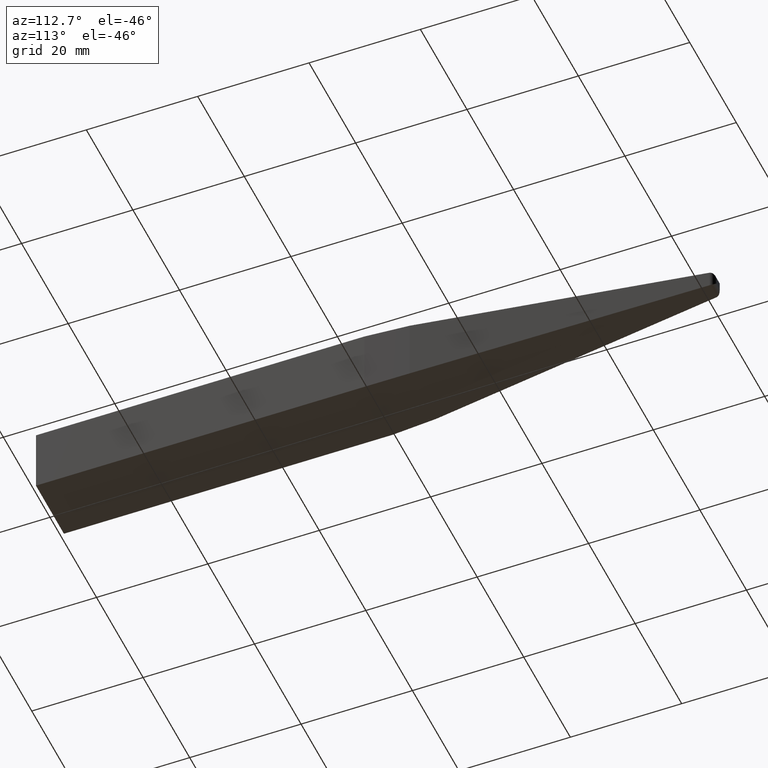
[diagram: clean part render]
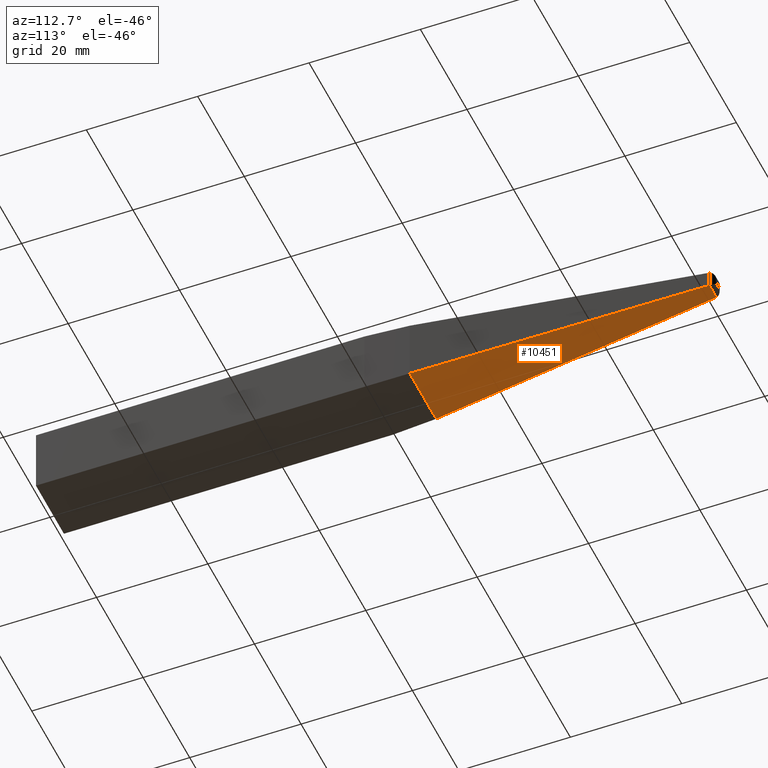
[diagram: same view with one face highlighted and labeled with its STEP entity id]
A machine part, auxiliary view. The second image highlights one B-rep face of the part: STEP entity #10451.
In plain terms, the highlighted planar face has unit normal (0, -0.08, 0.9968).
Its self-contained STEP definition (entity closure, byte-faithful):
#1302 = AXIS2_PLACEMENT_3D ( 'NONE', #3546, #7761, #2652 ) ;
#1614 = EDGE_CURVE ( 'NONE', #4689, #4151, #1851, .T. ) ;
#1727 = EDGE_CURVE ( 'NONE', #10297, #4151, #8538, .T. ) ;
#1851 = LINE ( 'NONE', #7917, #3956 ) ;
#2238 = CARTESIAN_POINT ( 'NONE',  ( 1.498841634460736705, 119.0800058657350888, -1.498841634460736261 ) ) ;
#2652 = DIRECTION ( 'NONE',  ( 0.000000000000000000, -0.9967943927651168323, -0.08000586573509492483 ) ) ;
#2941 = DIRECTION ( 'NONE',  ( 1.000000000000000000, 0.000000000000000000, -0.000000000000000000 ) ) ;
#3241 = DIRECTION ( 'NONE',  ( -0.07975103215001323742, -0.9936194169509849905, -0.07975103215001326518 ) ) ;
#3490 = VERTEX_POINT ( 'NONE', #2238 ) ;
#3546 = CARTESIAN_POINT ( 'NONE',  ( -6.000000000000000000, 63.00000000000000000, -6.000000000000000000 ) ) ;
#3671 = DIRECTION ( 'NONE',  ( -1.000000000000000000, -0.000000000000000000, -0.000000000000000000 ) ) ;
#3956 = VECTOR ( 'NONE', #3671, 1000.000000000000000 ) ;
#4134 = CARTESIAN_POINT ( 'NONE',  ( -1.454098039115140351, 119.6374670536474270, -1.454098039115139906 ) ) ;
#4151 = VERTEX_POINT ( 'NONE', #6695 ) ;
#4395 = EDGE_CURVE ( 'NONE', #10297, #3490, #4594, .T. ) ;
#4594 = LINE ( 'NONE', #8836, #6752 ) ;
#4689 = VERTEX_POINT ( 'NONE', #10566 ) ;
#4725 = VECTOR ( 'NONE', #8710, 999.9999999999998863 ) ;
#4973 = EDGE_CURVE ( 'NONE', #4689, #3490, #10491, .T. ) ;
#6018 = CARTESIAN_POINT ( 'NONE',  ( 1.454098039115140351, 119.6374670536474270, -1.454098039115139906 ) ) ;
#6374 = ORIENTED_EDGE ( 'NONE', *, *, #1727, .F. ) ;
#6695 = CARTESIAN_POINT ( 'NONE',  ( -5.679439276511701884, 66.99387130903450327, -5.679439276511703660 ) ) ;
#6752 = VECTOR ( 'NONE', #2941, 1000.000000000000000 ) ;
#6906 = PLANE ( 'NONE',  #1302 ) ;
#7301 = VECTOR ( 'NONE', #3241, 999.9999999999998863 ) ;
#7761 = DIRECTION ( 'NONE',  ( 0.000000000000000000, -0.08000586573509492483, 0.9967943927651168323 ) ) ;
#7917 = CARTESIAN_POINT ( 'NONE',  ( -6.000000000000000000, 66.99387130903467380, -5.679439276511691226 ) ) ;
#8321 = ORIENTED_EDGE ( 'NONE', *, *, #1614, .T. ) ;
#8528 = EDGE_LOOP ( 'NONE', ( #9894, #8321, #6374, #10302 ) ) ;
#8538 = LINE ( 'NONE', #4134, #7301 ) ;
#8710 = DIRECTION ( 'NONE',  ( -0.07975103215001323742, 0.9936194169509849905, 0.07975103215001326518 ) ) ;
#8836 = CARTESIAN_POINT ( 'NONE',  ( 1.424999999999998268, 119.0800058657350888, -1.498841634460736483 ) ) ;
#9376 = FACE_OUTER_BOUND ( 'NONE', #8528, .T. ) ;
#9861 = CARTESIAN_POINT ( 'NONE',  ( -1.498841634460736705, 119.0800058657350888, -1.498841634460736261 ) ) ;
#9894 = ORIENTED_EDGE ( 'NONE', *, *, #4973, .F. ) ;
#10297 = VERTEX_POINT ( 'NONE', #9861 ) ;
#10302 = ORIENTED_EDGE ( 'NONE', *, *, #4395, .T. ) ;
#10451 = ADVANCED_FACE ( 'NONE', ( #9376 ), #6906, .F. ) ;
#10491 = LINE ( 'NONE', #6018, #4725 ) ;
#10566 = CARTESIAN_POINT ( 'NONE',  ( 5.679439276511701884, 66.99387130903450327, -5.679439276511703660 ) ) ;